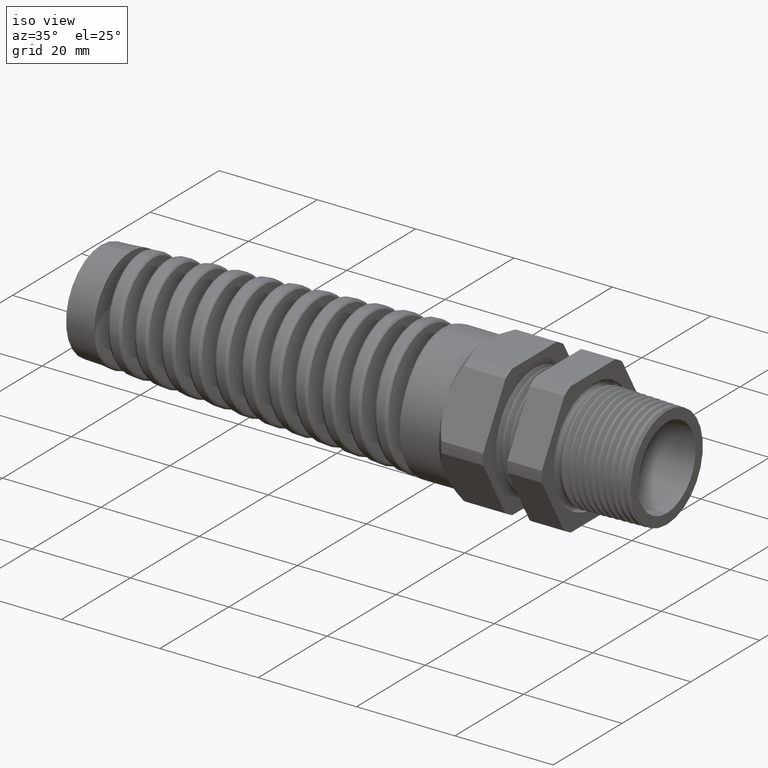
[diagram: clean part render]
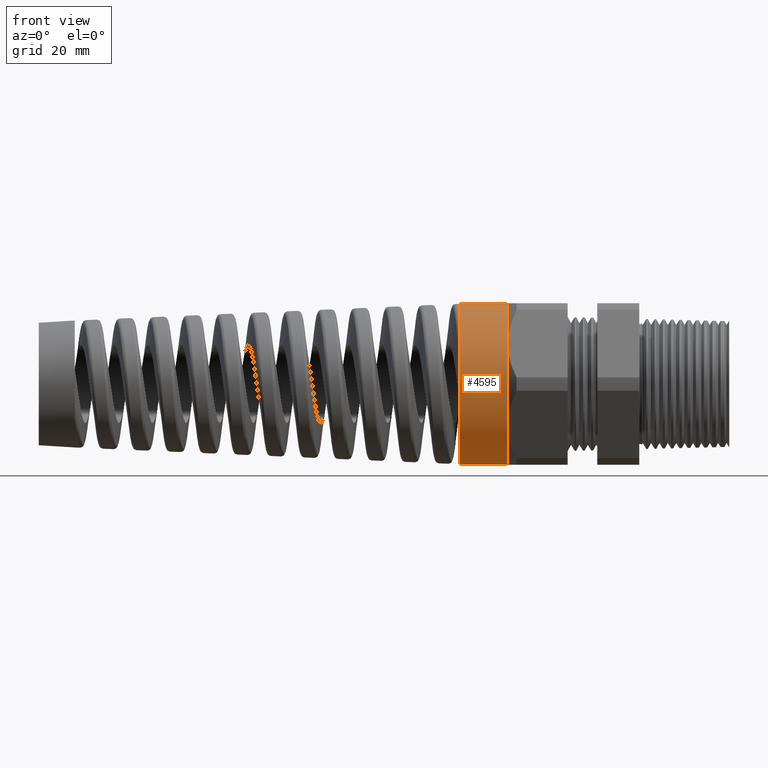
[diagram: tour spotlight — one face highlighted and labeled with its STEP entity id]
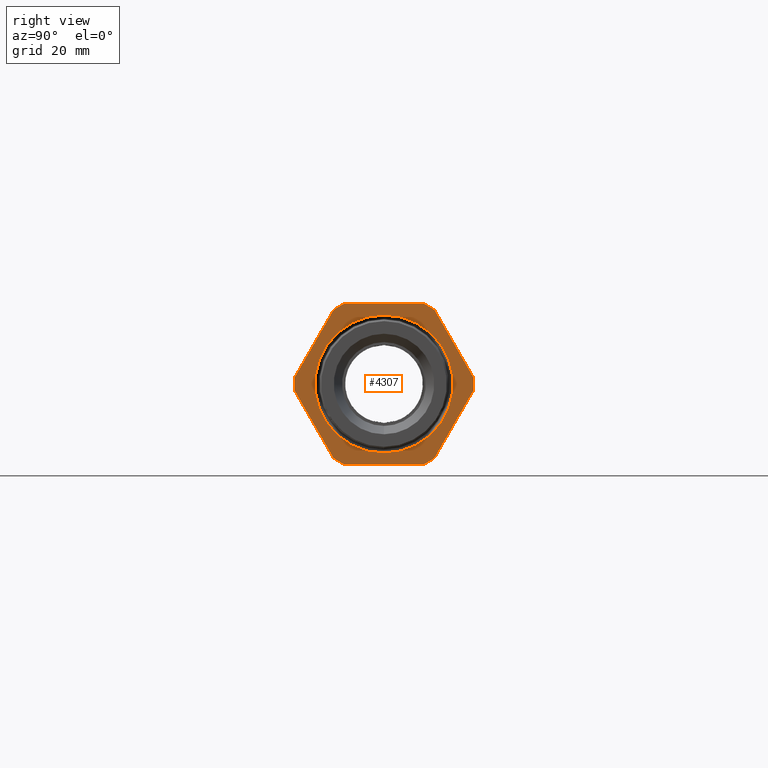
[diagram: tour spotlight — one face highlighted and labeled with its STEP entity id]
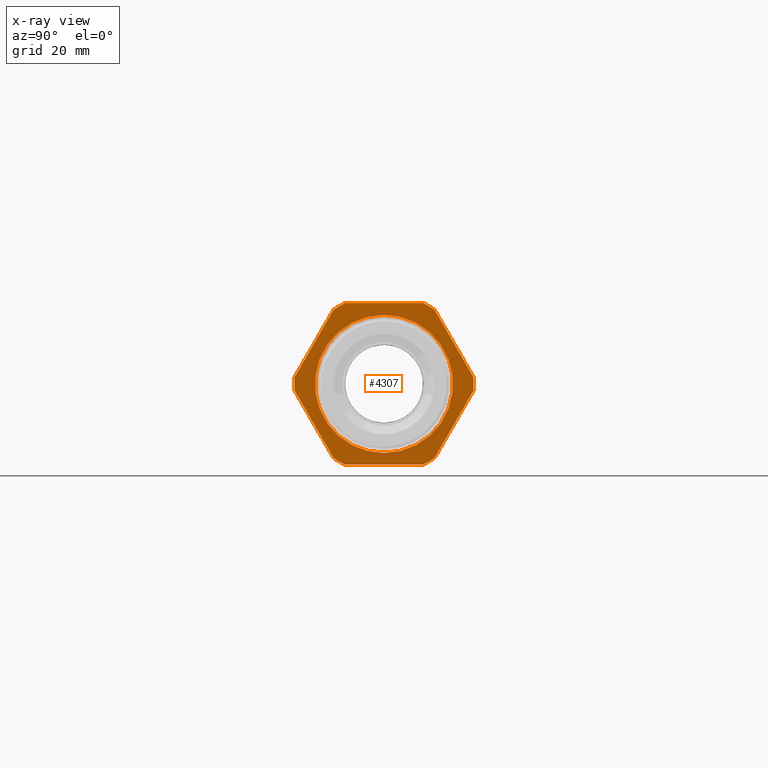
[diagram: x-ray of the same camera — body ghosted, this tour face saturated]
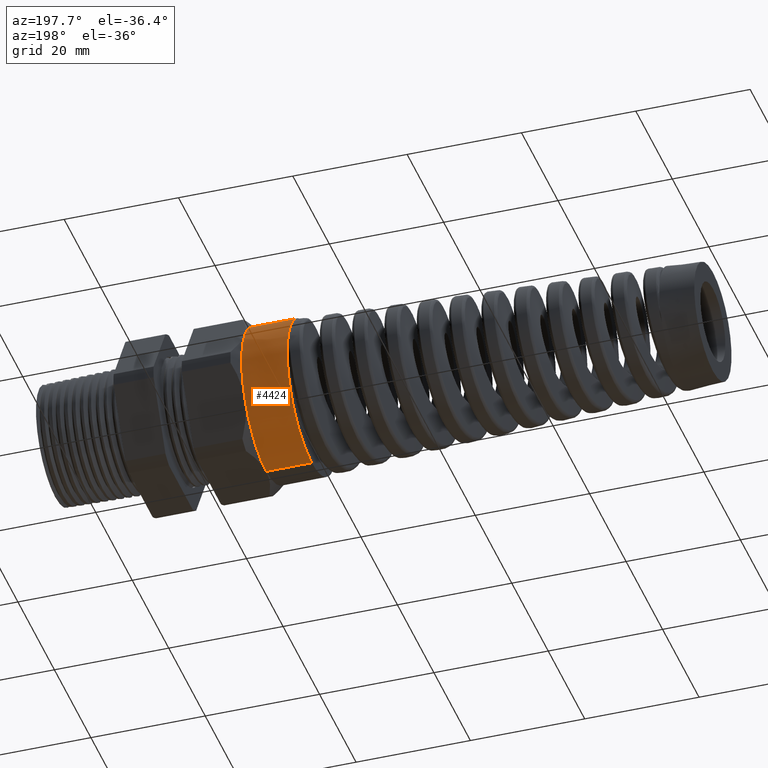
[diagram: tour spotlight — one face highlighted and labeled with its STEP entity id]
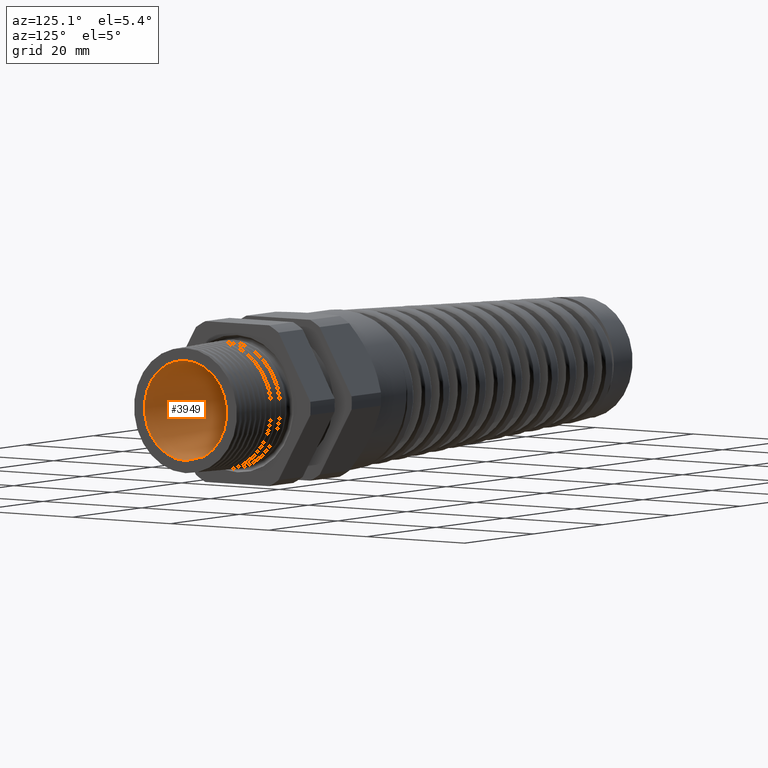
[diagram: tour spotlight — one face highlighted and labeled with its STEP entity id]
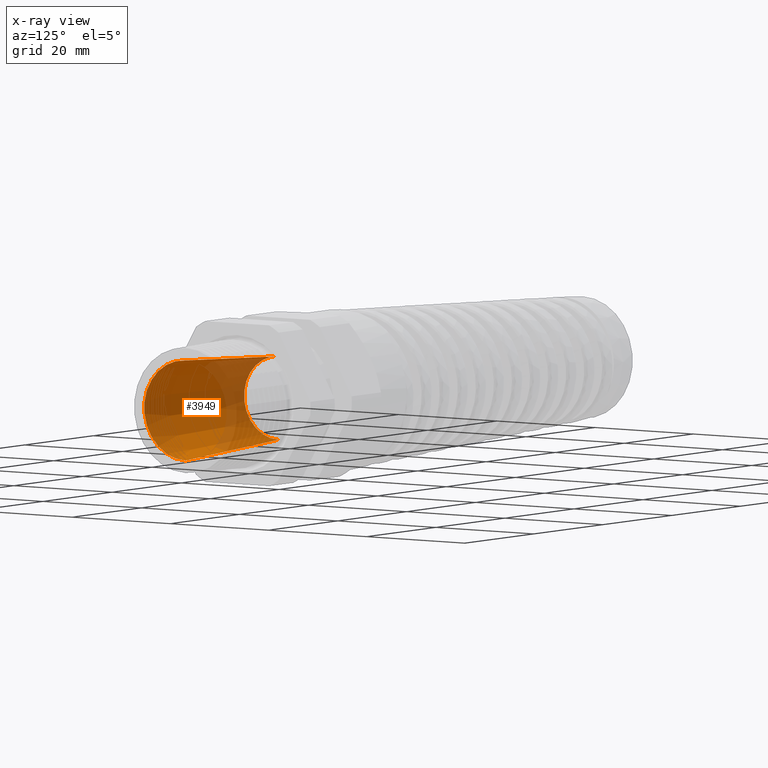
[diagram: x-ray of the same camera — body ghosted, this tour face saturated]
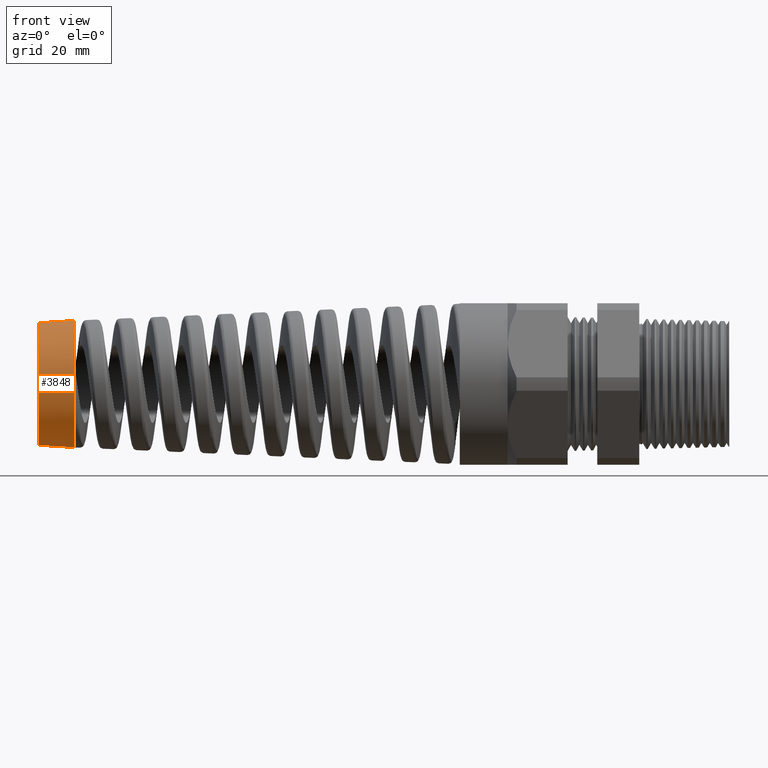
[diagram: tour spotlight — one face highlighted and labeled with its STEP entity id]
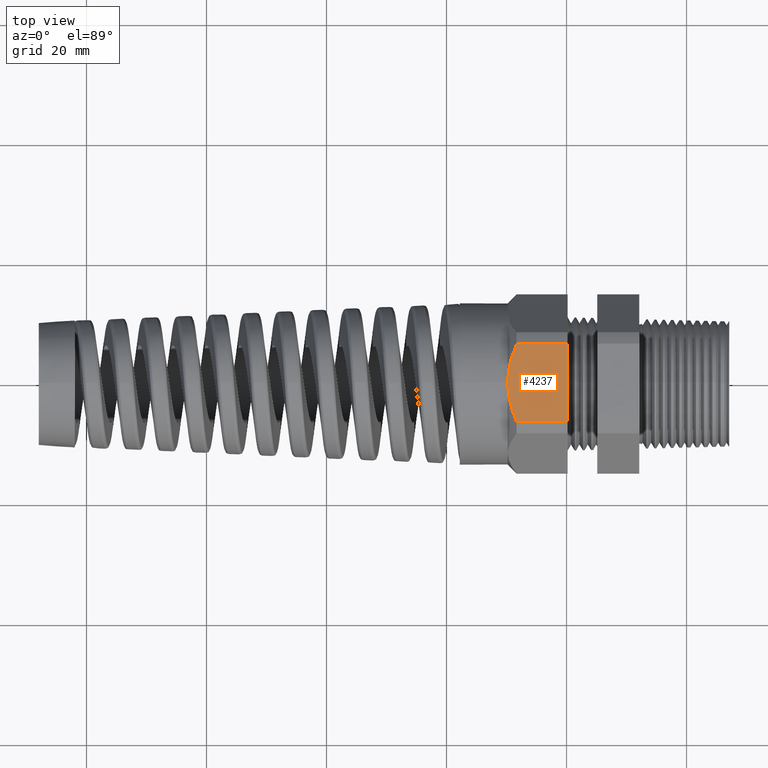
[diagram: tour spotlight — one face highlighted and labeled with its STEP entity id]
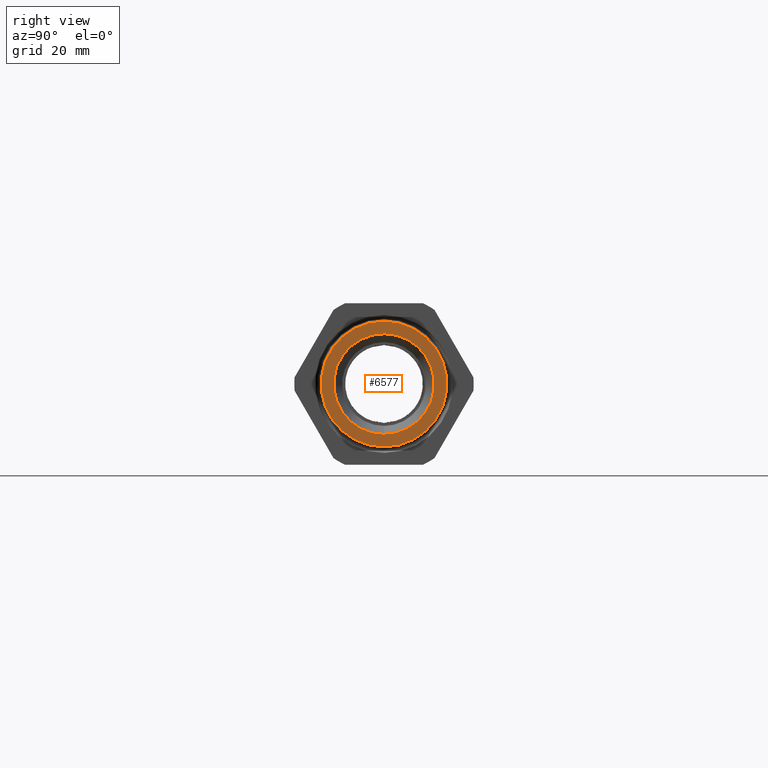
[diagram: tour spotlight — one face highlighted and labeled with its STEP entity id]
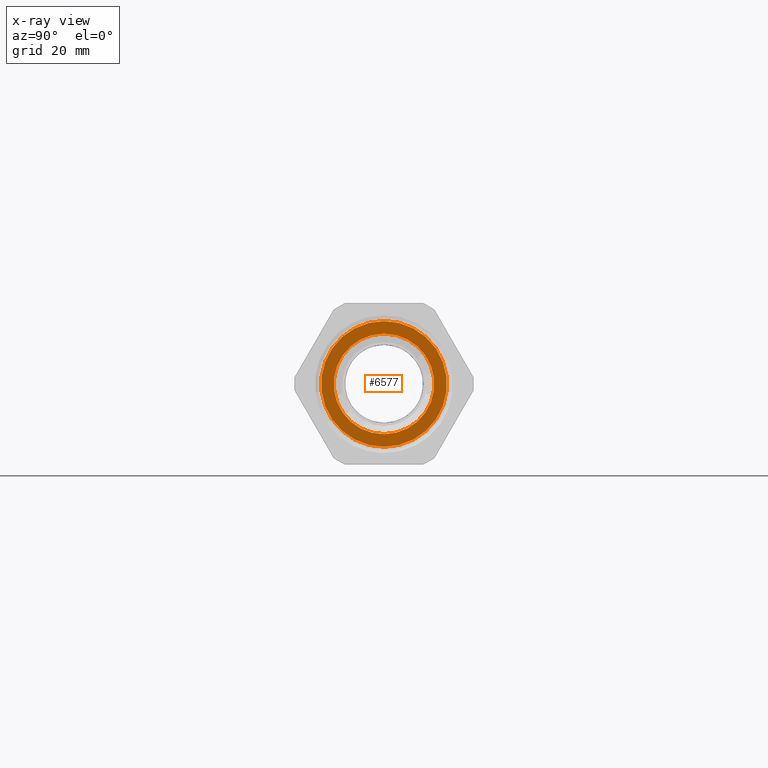
[diagram: x-ray of the same camera — body ghosted, this tour face saturated]
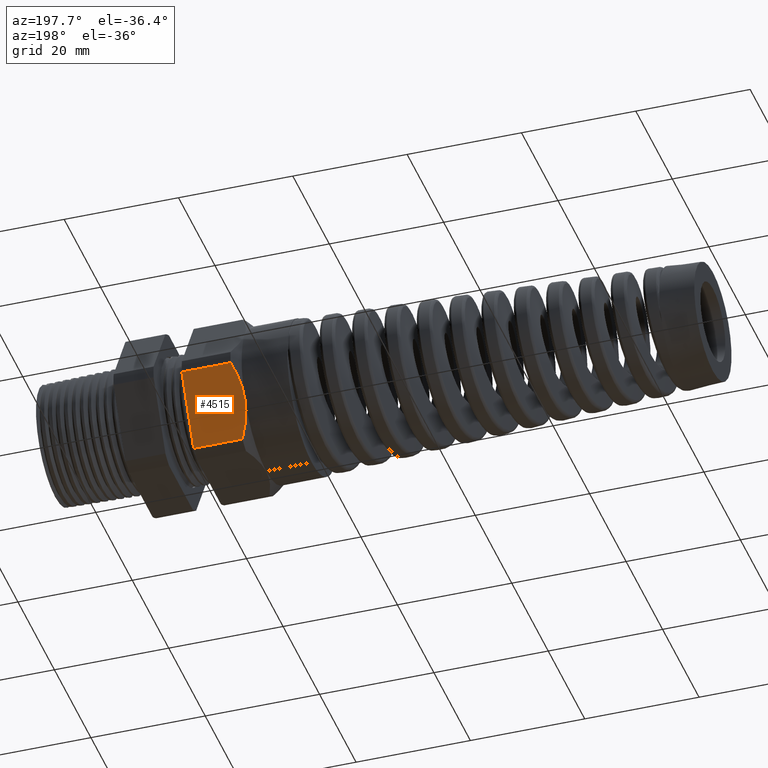
[diagram: tour spotlight — one face highlighted and labeled with its STEP entity id]
A machine part: a face-by-face anatomy tour. The part has 210 B-rep faces; the first image is the clean iso view, then the 8 largest visible faces are spotlighted one at a time (largest first), each with its STEP entity span.

Face 1 — front view, entity #4595. In plain terms, the highlighted cylindrical surface (partial cylindrical patch) has radius 13.462 mm, axis along (1, 0, 0).
Definition (entity closure, byte-faithful):
#4428 = VERTEX_POINT ( 'NONE', #18688 ) ;
#4429 = VERTEX_POINT ( 'NONE', #18687 ) ;
#4431 = EDGE_CURVE ( 'NONE', #4428, #4432, #18686, .T. ) ;
#4432 = VERTEX_POINT ( 'NONE', #18682 ) ;
#4444 = VERTEX_POINT ( 'NONE', #18738 ) ;
#4446 = EDGE_CURVE ( 'NONE', #4429, #4444, #18737, .T. ) ;
#4525 = VERTEX_POINT ( 'NONE', #18790 ) ;
#4595 = ADVANCED_FACE ( 'NONE', ( #18866 ), #19022, .T. ) ;
#4596 = EDGE_LOOP ( 'NONE', ( #4597, #4598, #4600, #4601, #4603, #4605 ) ) ;
#4597 = ORIENTED_EDGE ( 'NONE', *, *, #4431, .F. ) ;
#4598 = ORIENTED_EDGE ( 'NONE', *, *, #4599, .F. ) ;
#4599 = EDGE_CURVE ( 'NONE', #4429, #4428, #19003, .T. ) ;
#4600 = ORIENTED_EDGE ( 'NONE', *, *, #4446, .T. ) ;
#4601 = ORIENTED_EDGE ( 'NONE', *, *, #4602, .F. ) ;
#4602 = EDGE_CURVE ( 'NONE', #4525, #4444, #19098, .T. ) ;
#4603 = ORIENTED_EDGE ( 'NONE', *, *, #4604, .F. ) ;
#4604 = EDGE_CURVE ( 'NONE', #4608, #4525, #19093, .T. ) ;
#4605 = ORIENTED_EDGE ( 'NONE', *, *, #4613, .F. ) ;
#4608 = VERTEX_POINT ( 'NONE', #19183 ) ;
#4613 = EDGE_CURVE ( 'NONE', #4432, #4608, #19172, .T. ) ;
#18682 = CARTESIAN_POINT ( 'NONE',  ( -1.173779527559055200, 0.0000000000000000000, 0.5300000000000001400 ) ) ;
#18683 = DIRECTION ( 'NONE',  ( 1.000000000000000000, 0.0000000000000000000, 0.0000000000000000000 ) ) ;
#18684 = VECTOR ( 'NONE', #18683, 39.37007874015748100 ) ;
#18685 = CARTESIAN_POINT ( 'NONE',  ( 0.0000000000000000000, 6.490628035480972400E-017, 0.5300000000000000300 ) ) ;
#18686 = LINE ( 'NONE', #18685, #18684 ) ;
#18687 = CARTESIAN_POINT ( 'NONE',  ( -1.487985188310925600, 0.0000000000000000000, -0.5300000000000001400 ) ) ;
#18688 = CARTESIAN_POINT ( 'NONE',  ( -1.487985188310925600, 6.490628035480973600E-017, 0.5300000000000001400 ) ) ;
#18734 = DIRECTION ( 'NONE',  ( 1.000000000000000000, 0.0000000000000000000, 0.0000000000000000000 ) ) ;
#18735 = VECTOR ( 'NONE', #18734, 39.37007874015748100 ) ;
#18736 = CARTESIAN_POINT ( 'NONE',  ( 0.0000000000000000000, 0.0000000000000000000, -0.5300000000000000300 ) ) ;
#18737 = LINE ( 'NONE', #18736, #18735 ) ;
#18738 = CARTESIAN_POINT ( 'NONE',  ( -1.173779527559055200, 0.0000000000000000000, -0.5300000000000000300 ) ) ;
#18790 = CARTESIAN_POINT ( 'NONE',  ( -1.173779527559055200, -0.4589934640057526900, -0.2650000000000002400 ) ) ;
#18866 = FACE_OUTER_BOUND ( 'NONE', #4596, .T. ) ;
#19002 = AXIS2_PLACEMENT_3D ( 'NONE', #19023, #19100, #19099 ) ;
#19003 = CIRCLE ( 'NONE', #19002, 0.5300000000000001400 ) ;
#19004 = DIRECTION ( 'NONE',  ( 0.0000000000000000000, 0.0000000000000000000, -1.000000000000000000 ) ) ;
#19005 = DIRECTION ( 'NONE',  ( 1.000000000000000000, 0.0000000000000000000, 0.0000000000000000000 ) ) ;
#19006 = CARTESIAN_POINT ( 'NONE',  ( 0.0000000000000000000, 0.0000000000000000000, 0.0000000000000000000 ) ) ;
#19007 = AXIS2_PLACEMENT_3D ( 'NONE', #19006, #19005, #19004 ) ;
#19022 = CYLINDRICAL_SURFACE ( 'NONE', #19007, 0.5300000000000000300 ) ;
#19023 = CARTESIAN_POINT ( 'NONE',  ( -1.487985188310925600, 0.0000000000000000000, 0.0000000000000000000 ) ) ;
#19093 = CIRCLE ( 'NONE', #19188, 0.5300000000000000300 ) ;
#19094 = DIRECTION ( 'NONE',  ( 0.0000000000000000000, 0.0000000000000000000, -1.000000000000000000 ) ) ;
#19095 = DIRECTION ( 'NONE',  ( 1.000000000000000000, 0.0000000000000000000, 0.0000000000000000000 ) ) ;
#19096 = CARTESIAN_POINT ( 'NONE',  ( -1.173779527559055200, 0.0000000000000000000, 0.0000000000000000000 ) ) ;
#19097 = AXIS2_PLACEMENT_3D ( 'NONE', #19096, #19095, #19094 ) ;
#19098 = CIRCLE ( 'NONE', #19097, 0.5300000000000000300 ) ;
#19099 = DIRECTION ( 'NONE',  ( 0.0000000000000000000, 0.0000000000000000000, 1.000000000000000000 ) ) ;
#19100 = DIRECTION ( 'NONE',  ( -1.000000000000000000, 0.0000000000000000000, 0.0000000000000000000 ) ) ;
#19161 = DIRECTION ( 'NONE',  ( 0.0000000000000000000, 0.0000000000000000000, -1.000000000000000000 ) ) ;
#19162 = DIRECTION ( 'NONE',  ( 1.000000000000000000, 0.0000000000000000000, 0.0000000000000000000 ) ) ;
#19163 = CARTESIAN_POINT ( 'NONE',  ( -1.173779527559055200, 0.0000000000000000000, 0.0000000000000000000 ) ) ;
#19164 = AXIS2_PLACEMENT_3D ( 'NONE', #19163, #19162, #19161 ) ;
#19172 = CIRCLE ( 'NONE', #19164, 0.5300000000000000300 ) ;
#19183 = CARTESIAN_POINT ( 'NONE',  ( -1.173779527559055200, -0.4589934640057526900, 0.2650000000000000700 ) ) ;
#19185 = DIRECTION ( 'NONE',  ( 0.0000000000000000000, 0.0000000000000000000, -1.000000000000000000 ) ) ;
#19186 = DIRECTION ( 'NONE',  ( 1.000000000000000000, 0.0000000000000000000, 0.0000000000000000000 ) ) ;
#19187 = CARTESIAN_POINT ( 'NONE',  ( -1.173779527559055200, 0.0000000000000000000, 0.0000000000000000000 ) ) ;
#19188 = AXIS2_PLACEMENT_3D ( 'NONE', #19187, #19186, #19185 ) ;

Face 2 — right view, entity #4307. An x-ray twin of the same camera follows (body ghosted, this face saturated) — the face is partly hidden behind the body. In plain terms, the highlighted planar face has unit normal (1, 0, 0).
Definition (entity closure, byte-faithful):
#936 = DIRECTION ( 'NONE',  ( 0.0000000000000000000, 0.0000000000000000000, -1.000000000000000000 ) ) ;
#2095 = DIRECTION ( 'NONE',  ( -1.000000000000000000, 0.0000000000000000000, 0.0000000000000000000 ) ) ;
#2096 = CARTESIAN_POINT ( 'NONE',  ( -0.3100000000000000000, 0.0000000000000000000, 0.0000000000000000000 ) ) ;
#2097 = AXIS2_PLACEMENT_3D ( 'NONE', #2096, #2095, #936 ) ;
#2098 = CIRCLE ( 'NONE', #2097, 0.4526738836800272600 ) ;
#2275 = CARTESIAN_POINT ( 'NONE',  ( -0.3100000000000000000, 0.0000000000000000000, -0.4526738836800271400 ) ) ;
#2514 = CARTESIAN_POINT ( 'NONE',  ( -0.3100000000000000000, 5.543656227063465800E-017, 0.4526738836800271400 ) ) ;
#3117 = VERTEX_POINT ( 'NONE', #2514 ) ;
#3308 = EDGE_CURVE ( 'NONE', #3309, #3117, #2098, .T. ) ;
#3309 = VERTEX_POINT ( 'NONE', #2275 ) ;
#3813 = ORIENTED_EDGE ( 'NONE', *, *, #4501, .T. ) ;
#4293 = ORIENTED_EDGE ( 'NONE', *, *, #4294, .T. ) ;
#4294 = EDGE_CURVE ( 'NONE', #4295, #4296, #18294, .T. ) ;
#4295 = VERTEX_POINT ( 'NONE', #18290 ) ;
#4296 = VERTEX_POINT ( 'NONE', #18289 ) ;
#4297 = ORIENTED_EDGE ( 'NONE', *, *, #4298, .T. ) ;
#4298 = EDGE_CURVE ( 'NONE', #4296, #4318, #18288, .T. ) ;
#4307 = ADVANCED_FACE ( 'NONE', ( #18552, #18704 ), #18702, .T. ) ;
#4308 = EDGE_LOOP ( 'NONE', ( #4293, #4297, #4319, #4322, #4333, #4336, #4309, #4312, #4315, #3813, #4502, #4490 ) ) ;
#4309 = ORIENTED_EDGE ( 'NONE', *, *, #4310, .T. ) ;
#4310 = EDGE_CURVE ( 'NONE', #4338, #4311, #18703, .T. ) ;
#4311 = VERTEX_POINT ( 'NONE', #18607 ) ;
#4312 = ORIENTED_EDGE ( 'NONE', *, *, #4313, .T. ) ;
#4313 = EDGE_CURVE ( 'NONE', #4311, #4314, #18606, .T. ) ;
#4314 = VERTEX_POINT ( 'NONE', #18601 ) ;
#4315 = ORIENTED_EDGE ( 'NONE', *, *, #4316, .T. ) ;
#4316 = EDGE_CURVE ( 'NONE', #4314, #4317, #18600, .T. ) ;
#4317 = VERTEX_POINT ( 'NONE', #18596 ) ;
#4318 = VERTEX_POINT ( 'NONE', #18595 ) ;
#4319 = ORIENTED_EDGE ( 'NONE', *, *, #4320, .T. ) ;
#4320 = EDGE_CURVE ( 'NONE', #4318, #4321, #18594, .T. ) ;
#4321 = VERTEX_POINT ( 'NONE', #18590 ) ;
#4322 = ORIENTED_EDGE ( 'NONE', *, *, #4323, .T. ) ;
#4323 = EDGE_CURVE ( 'NONE', #4321, #4332, #18589, .T. ) ;
#4332 = VERTEX_POINT ( 'NONE', #18475 ) ;
#4333 = ORIENTED_EDGE ( 'NONE', *, *, #4334, .T. ) ;
#4334 = EDGE_CURVE ( 'NONE', #4332, #4335, #18474, .T. ) ;
#4335 = VERTEX_POINT ( 'NONE', #18470 ) ;
#4336 = ORIENTED_EDGE ( 'NONE', *, *, #4337, .T. ) ;
#4337 = EDGE_CURVE ( 'NONE', #4335, #4338, #18469, .T. ) ;
#4338 = VERTEX_POINT ( 'NONE', #18464 ) ;
#4456 = EDGE_LOOP ( 'NONE', ( #4521, #4522 ) ) ;
#4490 = ORIENTED_EDGE ( 'NONE', *, *, #4491, .T. ) ;
#4491 = EDGE_CURVE ( 'NONE', #4520, #4295, #18729, .T. ) ;
#4492 = EDGE_CURVE ( 'NONE', #3117, #3309, #18724, .T. ) ;
#4501 = EDGE_CURVE ( 'NONE', #4317, #4519, #18819, .T. ) ;
#4502 = ORIENTED_EDGE ( 'NONE', *, *, #4512, .T. ) ;
#4512 = EDGE_CURVE ( 'NONE', #4519, #4520, #18804, .T. ) ;
#4519 = VERTEX_POINT ( 'NONE', #18793 ) ;
#4520 = VERTEX_POINT ( 'NONE', #18792 ) ;
#4521 = ORIENTED_EDGE ( 'NONE', *, *, #3308, .T. ) ;
#4522 = ORIENTED_EDGE ( 'NONE', *, *, #4492, .T. ) ;
#18284 = DIRECTION ( 'NONE',  ( 0.0000000000000000000, 0.0000000000000000000, -1.000000000000000000 ) ) ;
#18285 = DIRECTION ( 'NONE',  ( 1.000000000000000000, 0.0000000000000000000, 0.0000000000000000000 ) ) ;
#18286 = CARTESIAN_POINT ( 'NONE',  ( -0.3100000000000000000, 0.0000000000000000000, 0.0000000000000000000 ) ) ;
#18287 = AXIS2_PLACEMENT_3D ( 'NONE', #18286, #18285, #18284 ) ;
#18288 = CIRCLE ( 'NONE', #18287, 0.5883000000000000500 ) ;
#18289 = CARTESIAN_POINT ( 'NONE',  ( -0.3100000000000000000, 0.5866618723924789100, -0.04387183015273760800 ) ) ;
#18290 = CARTESIAN_POINT ( 'NONE',  ( -0.3100000000000000000, 0.3313250556190265900, -0.4861281698472626500 ) ) ;
#18291 = DIRECTION ( 'NONE',  ( 0.0000000000000000000, 0.4999999999999997200, 0.8660254037844388200 ) ) ;
#18292 = VECTOR ( 'NONE', #18291, 39.37007874015748900 ) ;
#18293 = CARTESIAN_POINT ( 'NONE',  ( -0.3100000000000000000, 0.7239934640057524900, 0.1939934640057522900 ) ) ;
#18294 = LINE ( 'NONE', #18293, #18292 ) ;
#18464 = CARTESIAN_POINT ( 'NONE',  ( -0.3100000000000000000, -0.3313250556190262000, 0.4861281698472627600 ) ) ;
#18465 = DIRECTION ( 'NONE',  ( 0.0000000000000000000, 0.0000000000000000000, -1.000000000000000000 ) ) ;
#18466 = DIRECTION ( 'NONE',  ( 1.000000000000000000, 0.0000000000000000000, 0.0000000000000000000 ) ) ;
#18467 = CARTESIAN_POINT ( 'NONE',  ( -0.3100000000000000000, 0.0000000000000000000, 0.0000000000000000000 ) ) ;
#18468 = AXIS2_PLACEMENT_3D ( 'NONE', #18467, #18466, #18465 ) ;
#18469 = CIRCLE ( 'NONE', #18468, 0.5882999999999999300 ) ;
#18470 = CARTESIAN_POINT ( 'NONE',  ( -0.3100000000000000000, -0.2553368167734533200, 0.5299999999999999200 ) ) ;
#18471 = DIRECTION ( 'NONE',  ( 0.0000000000000000000, -1.000000000000000000, 0.0000000000000000000 ) ) ;
#18472 = VECTOR ( 'NONE', #18471, 39.37007874015748100 ) ;
#18473 = CARTESIAN_POINT ( 'NONE',  ( -0.3100000000000000000, 1.060000000000000100, 0.5300000000000001400 ) ) ;
#18474 = LINE ( 'NONE', #18473, #18472 ) ;
#18475 = CARTESIAN_POINT ( 'NONE',  ( -0.3100000000000000000, 0.2553368167734530500, 0.5300000000000001400 ) ) ;
#18552 = FACE_OUTER_BOUND ( 'NONE', #4308, .T. ) ;
#18585 = DIRECTION ( 'NONE',  ( 0.0000000000000000000, 0.0000000000000000000, -1.000000000000000000 ) ) ;
#18586 = DIRECTION ( 'NONE',  ( 1.000000000000000000, 0.0000000000000000000, 0.0000000000000000000 ) ) ;
#18587 = CARTESIAN_POINT ( 'NONE',  ( -0.3100000000000000000, 0.0000000000000000000, 0.0000000000000000000 ) ) ;
#18588 = AXIS2_PLACEMENT_3D ( 'NONE', #18587, #18586, #18585 ) ;
#18589 = CIRCLE ( 'NONE', #18588, 0.5882999999999999300 ) ;
#18590 = CARTESIAN_POINT ( 'NONE',  ( -0.3100000000000000000, 0.3313250556190264200, 0.4861281698472625900 ) ) ;
#18591 = DIRECTION ( 'NONE',  ( 0.0000000000000000000, -0.5000000000000001100, 0.8660254037844386000 ) ) ;
#18592 = VECTOR ( 'NONE', #18591, 39.37007874015748100 ) ;
#18593 = CARTESIAN_POINT ( 'NONE',  ( -0.3100000000000000000, 0.7239934640057528200, -0.1939934640057523200 ) ) ;
#18594 = LINE ( 'NONE', #18593, #18592 ) ;
#18595 = CARTESIAN_POINT ( 'NONE',  ( -0.3100000000000000000, 0.5866618723924790200, 0.04387183015273769800 ) ) ;
#18596 = CARTESIAN_POINT ( 'NONE',  ( -0.3100000000000000000, -0.3313250556190258700, -0.4861281698472630400 ) ) ;
#18597 = DIRECTION ( 'NONE',  ( 0.0000000000000000000, 0.5000000000000002200, -0.8660254037844386000 ) ) ;
#18598 = VECTOR ( 'NONE', #18597, 39.37007874015747400 ) ;
#18599 = CARTESIAN_POINT ( 'NONE',  ( -0.3100000000000000000, -0.1939934640057522900, -0.7239934640057527100 ) ) ;
#18600 = LINE ( 'NONE', #18599, #18598 ) ;
#18601 = CARTESIAN_POINT ( 'NONE',  ( -0.3100000000000000000, -0.5866618723924791300, -0.04387183015273716400 ) ) ;
#18602 = DIRECTION ( 'NONE',  ( 0.0000000000000000000, 0.0000000000000000000, -1.000000000000000000 ) ) ;
#18603 = DIRECTION ( 'NONE',  ( 1.000000000000000000, 0.0000000000000000000, 0.0000000000000000000 ) ) ;
#18604 = CARTESIAN_POINT ( 'NONE',  ( -0.3100000000000000000, 0.0000000000000000000, 0.0000000000000000000 ) ) ;
#18605 = AXIS2_PLACEMENT_3D ( 'NONE', #18604, #18603, #18602 ) ;
#18606 = CIRCLE ( 'NONE', #18605, 0.5883000000000000500 ) ;
#18607 = CARTESIAN_POINT ( 'NONE',  ( -0.3100000000000000000, -0.5866618723924791300, 0.04387183015273703200 ) ) ;
#18608 = DIRECTION ( 'NONE',  ( 0.0000000000000000000, -0.4999999999999998300, -0.8660254037844386000 ) ) ;
#18609 = VECTOR ( 'NONE', #18608, 39.37007874015748900 ) ;
#18610 = CARTESIAN_POINT ( 'NONE',  ( -0.3100000000000000000, -0.1939934640057528500, 0.7239934640057523700 ) ) ;
#18698 = DIRECTION ( 'NONE',  ( 0.0000000000000000000, 0.0000000000000000000, -1.000000000000000000 ) ) ;
#18699 = DIRECTION ( 'NONE',  ( 1.000000000000000000, 0.0000000000000000000, 0.0000000000000000000 ) ) ;
#18700 = CARTESIAN_POINT ( 'NONE',  ( -0.3100000000000000000, 1.060000000000000100, 0.0000000000000000000 ) ) ;
#18701 = AXIS2_PLACEMENT_3D ( 'NONE', #18700, #18699, #18698 ) ;
#18702 = PLANE ( 'NONE',  #18701 ) ;
#18703 = LINE ( 'NONE', #18610, #18609 ) ;
#18704 = FACE_BOUND ( 'NONE', #4456, .T. ) ;
#18720 = DIRECTION ( 'NONE',  ( 0.0000000000000000000, 0.0000000000000000000, -1.000000000000000000 ) ) ;
#18721 = DIRECTION ( 'NONE',  ( -1.000000000000000000, 0.0000000000000000000, 0.0000000000000000000 ) ) ;
#18722 = CARTESIAN_POINT ( 'NONE',  ( -0.3100000000000000000, 0.0000000000000000000, 0.0000000000000000000 ) ) ;
#18723 = AXIS2_PLACEMENT_3D ( 'NONE', #18722, #18721, #18720 ) ;
#18724 = CIRCLE ( 'NONE', #18723, 0.4526738836800272600 ) ;
#18725 = DIRECTION ( 'NONE',  ( 0.0000000000000000000, 0.0000000000000000000, -1.000000000000000000 ) ) ;
#18726 = DIRECTION ( 'NONE',  ( 1.000000000000000000, 0.0000000000000000000, 0.0000000000000000000 ) ) ;
#18727 = CARTESIAN_POINT ( 'NONE',  ( -0.3100000000000000000, 0.0000000000000000000, 0.0000000000000000000 ) ) ;
#18728 = AXIS2_PLACEMENT_3D ( 'NONE', #18727, #18726, #18725 ) ;
#18729 = CIRCLE ( 'NONE', #18728, 0.5883000000000000500 ) ;
#18792 = CARTESIAN_POINT ( 'NONE',  ( -0.3100000000000000000, 0.2553368167734530500, -0.5300000000000001400 ) ) ;
#18793 = CARTESIAN_POINT ( 'NONE',  ( -0.3100000000000000000, -0.2553368167734529900, -0.5300000000000001400 ) ) ;
#18801 = DIRECTION ( 'NONE',  ( 0.0000000000000000000, 1.000000000000000000, 0.0000000000000000000 ) ) ;
#18802 = VECTOR ( 'NONE', #18801, 39.37007874015748100 ) ;
#18803 = CARTESIAN_POINT ( 'NONE',  ( -0.3100000000000000000, 1.060000000000000100, -0.5300000000000001400 ) ) ;
#18804 = LINE ( 'NONE', #18803, #18802 ) ;
#18816 = DIRECTION ( 'NONE',  ( 0.0000000000000000000, 0.0000000000000000000, -1.000000000000000000 ) ) ;
#18817 = DIRECTION ( 'NONE',  ( 1.000000000000000000, 0.0000000000000000000, 0.0000000000000000000 ) ) ;
#18818 = AXIS2_PLACEMENT_3D ( 'NONE', #18856, #18817, #18816 ) ;
#18819 = CIRCLE ( 'NONE', #18818, 0.5883000000000000500 ) ;
#18856 = CARTESIAN_POINT ( 'NONE',  ( -0.3100000000000000000, 0.0000000000000000000, 0.0000000000000000000 ) ) ;

Face 3 — auxiliary view, entity #4424. In plain terms, the highlighted cylindrical surface (partial cylindrical patch) has radius 13.462 mm, axis along (1, 0, 0).
Definition (entity closure, byte-faithful):
#4424 = ADVANCED_FACE ( 'NONE', ( #18642 ), #18641, .T. ) ;
#4425 = EDGE_LOOP ( 'NONE', ( #4426, #4430, #4437, #4439, #4442, #4445 ) ) ;
#4426 = ORIENTED_EDGE ( 'NONE', *, *, #4427, .F. ) ;
#4427 = EDGE_CURVE ( 'NONE', #4428, #4429, #18692, .T. ) ;
#4428 = VERTEX_POINT ( 'NONE', #18688 ) ;
#4429 = VERTEX_POINT ( 'NONE', #18687 ) ;
#4430 = ORIENTED_EDGE ( 'NONE', *, *, #4431, .T. ) ;
#4431 = EDGE_CURVE ( 'NONE', #4428, #4432, #18686, .T. ) ;
#4432 = VERTEX_POINT ( 'NONE', #18682 ) ;
#4433 = VERTEX_POINT ( 'NONE', #18681 ) ;
#4437 = ORIENTED_EDGE ( 'NONE', *, *, #4438, .F. ) ;
#4438 = EDGE_CURVE ( 'NONE', #4433, #4432, #18676, .T. ) ;
#4439 = ORIENTED_EDGE ( 'NONE', *, *, #4440, .F. ) ;
#4440 = EDGE_CURVE ( 'NONE', #4441, #4433, #18787, .T. ) ;
#4441 = VERTEX_POINT ( 'NONE', #18847 ) ;
#4442 = ORIENTED_EDGE ( 'NONE', *, *, #4443, .F. ) ;
#4443 = EDGE_CURVE ( 'NONE', #4444, #4441, #18846, .T. ) ;
#4444 = VERTEX_POINT ( 'NONE', #18738 ) ;
#4445 = ORIENTED_EDGE ( 'NONE', *, *, #4446, .F. ) ;
#4446 = EDGE_CURVE ( 'NONE', #4429, #4444, #18737, .T. ) ;
#18283 = AXIS2_PLACEMENT_3D ( 'NONE', #18675, #18789, #18788 ) ;
#18641 = CYLINDRICAL_SURFACE ( 'NONE', #18697, 0.5300000000000000300 ) ;
#18642 = FACE_OUTER_BOUND ( 'NONE', #4425, .T. ) ;
#18675 = CARTESIAN_POINT ( 'NONE',  ( -1.173779527559055200, 0.0000000000000000000, 0.0000000000000000000 ) ) ;
#18676 = CIRCLE ( 'NONE', #18283, 0.5300000000000000300 ) ;
#18681 = CARTESIAN_POINT ( 'NONE',  ( -1.173779527559055200, 0.4589934640057527500, 0.2650000000000002400 ) ) ;
#18682 = CARTESIAN_POINT ( 'NONE',  ( -1.173779527559055200, 0.0000000000000000000, 0.5300000000000001400 ) ) ;
#18683 = DIRECTION ( 'NONE',  ( 1.000000000000000000, 0.0000000000000000000, 0.0000000000000000000 ) ) ;
#18684 = VECTOR ( 'NONE', #18683, 39.37007874015748100 ) ;
#18685 = CARTESIAN_POINT ( 'NONE',  ( 0.0000000000000000000, 6.490628035480972400E-017, 0.5300000000000000300 ) ) ;
#18686 = LINE ( 'NONE', #18685, #18684 ) ;
#18687 = CARTESIAN_POINT ( 'NONE',  ( -1.487985188310925600, 0.0000000000000000000, -0.5300000000000001400 ) ) ;
#18688 = CARTESIAN_POINT ( 'NONE',  ( -1.487985188310925600, 6.490628035480973600E-017, 0.5300000000000001400 ) ) ;
#18689 = DIRECTION ( 'NONE',  ( 0.0000000000000000000, 0.0000000000000000000, 1.000000000000000000 ) ) ;
#18690 = DIRECTION ( 'NONE',  ( -1.000000000000000000, 0.0000000000000000000, 0.0000000000000000000 ) ) ;
#18691 = AXIS2_PLACEMENT_3D ( 'NONE', #18696, #18690, #18689 ) ;
#18692 = CIRCLE ( 'NONE', #18691, 0.5300000000000001400 ) ;
#18693 = DIRECTION ( 'NONE',  ( 0.0000000000000000000, 0.0000000000000000000, -1.000000000000000000 ) ) ;
#18694 = DIRECTION ( 'NONE',  ( 1.000000000000000000, 0.0000000000000000000, 0.0000000000000000000 ) ) ;
#18695 = CARTESIAN_POINT ( 'NONE',  ( 0.0000000000000000000, 0.0000000000000000000, 0.0000000000000000000 ) ) ;
#18696 = CARTESIAN_POINT ( 'NONE',  ( -1.487985188310925600, 0.0000000000000000000, 0.0000000000000000000 ) ) ;
#18697 = AXIS2_PLACEMENT_3D ( 'NONE', #18695, #18694, #18693 ) ;
#18734 = DIRECTION ( 'NONE',  ( 1.000000000000000000, 0.0000000000000000000, 0.0000000000000000000 ) ) ;
#18735 = VECTOR ( 'NONE', #18734, 39.37007874015748100 ) ;
#18736 = CARTESIAN_POINT ( 'NONE',  ( 0.0000000000000000000, 0.0000000000000000000, -0.5300000000000000300 ) ) ;
#18737 = LINE ( 'NONE', #18736, #18735 ) ;
#18738 = CARTESIAN_POINT ( 'NONE',  ( -1.173779527559055200, 0.0000000000000000000, -0.5300000000000000300 ) ) ;
#18739 = DIRECTION ( 'NONE',  ( 0.0000000000000000000, 0.0000000000000000000, -1.000000000000000000 ) ) ;
#18740 = DIRECTION ( 'NONE',  ( 1.000000000000000000, 0.0000000000000000000, 0.0000000000000000000 ) ) ;
#18741 = AXIS2_PLACEMENT_3D ( 'NONE', #18845, #18740, #18739 ) ;
#18787 = CIRCLE ( 'NONE', #18851, 0.5300000000000000300 ) ;
#18788 = DIRECTION ( 'NONE',  ( 0.0000000000000000000, 0.0000000000000000000, -1.000000000000000000 ) ) ;
#18789 = DIRECTION ( 'NONE',  ( 1.000000000000000000, 0.0000000000000000000, 0.0000000000000000000 ) ) ;
#18845 = CARTESIAN_POINT ( 'NONE',  ( -1.173779527559055200, 0.0000000000000000000, 0.0000000000000000000 ) ) ;
#18846 = CIRCLE ( 'NONE', #18741, 0.5300000000000000300 ) ;
#18847 = CARTESIAN_POINT ( 'NONE',  ( -1.173779527559055200, 0.4589934640057530300, -0.2650000000000001200 ) ) ;
#18848 = DIRECTION ( 'NONE',  ( 0.0000000000000000000, 0.0000000000000000000, -1.000000000000000000 ) ) ;
#18849 = DIRECTION ( 'NONE',  ( 1.000000000000000000, 0.0000000000000000000, 0.0000000000000000000 ) ) ;
#18850 = CARTESIAN_POINT ( 'NONE',  ( -1.173779527559055200, 0.0000000000000000000, 0.0000000000000000000 ) ) ;
#18851 = AXIS2_PLACEMENT_3D ( 'NONE', #18850, #18849, #18848 ) ;

Face 4 — auxiliary view, entity #3949. An x-ray twin of the same camera follows (body ghosted, this face saturated) — the face is partly hidden behind the body. In plain terms, the highlighted conical surface has half-angle 2.97 deg.
Definition (entity closure, byte-faithful):
#3949 = ADVANCED_FACE ( 'NONE', ( #17637 ), #17567, .F. ) ;
#3950 = EDGE_LOOP ( 'NONE', ( #3951, #3955, #3976, #4362 ) ) ;
#3951 = ORIENTED_EDGE ( 'NONE', *, *, #3952, .F. ) ;
#3952 = EDGE_CURVE ( 'NONE', #3953, #3954, #17563, .T. ) ;
#3953 = VERTEX_POINT ( 'NONE', #17559 ) ;
#3954 = VERTEX_POINT ( 'NONE', #17558 ) ;
#3955 = ORIENTED_EDGE ( 'NONE', *, *, #3956, .T. ) ;
#3956 = EDGE_CURVE ( 'NONE', #3953, #3975, #17557, .T. ) ;
#3975 = VERTEX_POINT ( 'NONE', #17947 ) ;
#3976 = ORIENTED_EDGE ( 'NONE', *, *, #3977, .T. ) ;
#3977 = EDGE_CURVE ( 'NONE', #3975, #4361, #17946, .T. ) ;
#4361 = VERTEX_POINT ( 'NONE', #18583 ) ;
#4362 = ORIENTED_EDGE ( 'NONE', *, *, #4363, .F. ) ;
#4363 = EDGE_CURVE ( 'NONE', #3954, #4361, #18582, .T. ) ;
#17554 = DIRECTION ( 'NONE',  ( 0.9986567915187993800, 6.345292932195006300E-018, 0.05181324882090775800 ) ) ;
#17555 = VECTOR ( 'NONE', #17554, 39.37007874015748100 ) ;
#17556 = CARTESIAN_POINT ( 'NONE',  ( -0.7800787401574805800, 3.367778697655221900E-017, 0.2750000000000000200 ) ) ;
#17557 = LINE ( 'NONE', #17556, #17555 ) ;
#17558 = CARTESIAN_POINT ( 'NONE',  ( -0.7800787401574805800, 0.0000000000000000000, -0.2750000000000000200 ) ) ;
#17559 = CARTESIAN_POINT ( 'NONE',  ( -0.7800787401574805800, 3.367778697655221900E-017, 0.2750000000000000200 ) ) ;
#17560 = DIRECTION ( 'NONE',  ( 0.0000000000000000000, 0.0000000000000000000, -1.000000000000000000 ) ) ;
#17561 = DIRECTION ( 'NONE',  ( 1.000000000000000000, 0.0000000000000000000, 0.0000000000000000000 ) ) ;
#17562 = AXIS2_PLACEMENT_3D ( 'NONE', #17636, #17561, #17560 ) ;
#17563 = CIRCLE ( 'NONE', #17562, 0.2750000000000000200 ) ;
#17564 = DIRECTION ( 'NONE',  ( 0.0000000000000000000, 0.0000000000000000000, -1.000000000000000000 ) ) ;
#17565 = DIRECTION ( 'NONE',  ( 1.000000000000000000, 0.0000000000000000000, 0.0000000000000000000 ) ) ;
#17566 = AXIS2_PLACEMENT_3D ( 'NONE', #17635, #17565, #17564 ) ;
#17567 = CONICAL_SURFACE ( 'NONE', #17566, 0.2750000000000000200, 0.05183645995742963700 ) ;
#17635 = CARTESIAN_POINT ( 'NONE',  ( -0.7800787401574805800, 0.0000000000000000000, 0.0000000000000000000 ) ) ;
#17636 = CARTESIAN_POINT ( 'NONE',  ( -0.7800787401574805800, 0.0000000000000000000, 0.0000000000000000000 ) ) ;
#17637 = FACE_OUTER_BOUND ( 'NONE', #3950, .T. ) ;
#17942 = DIRECTION ( 'NONE',  ( 0.0000000000000000000, 0.0000000000000000000, -1.000000000000000000 ) ) ;
#17943 = DIRECTION ( 'NONE',  ( 1.000000000000000000, 0.0000000000000000000, 0.0000000000000000000 ) ) ;
#17944 = CARTESIAN_POINT ( 'NONE',  ( 0.2800000000000000300, 0.0000000000000000000, 0.0000000000000000000 ) ) ;
#17945 = AXIS2_PLACEMENT_3D ( 'NONE', #17944, #17943, #17942 ) ;
#17946 = CIRCLE ( 'NONE', #17945, 0.3300000000000000200 ) ;
#17947 = CARTESIAN_POINT ( 'NONE',  ( 0.2800000000000000300, 4.041334437186265900E-017, 0.3300000000000000200 ) ) ;
#18579 = DIRECTION ( 'NONE',  ( 0.9986567915187993800, 0.0000000000000000000, -0.05181324882090775800 ) ) ;
#18580 = VECTOR ( 'NONE', #18579, 39.37007874015748100 ) ;
#18581 = CARTESIAN_POINT ( 'NONE',  ( -0.7800787401574805800, 0.0000000000000000000, -0.2750000000000000200 ) ) ;
#18582 = LINE ( 'NONE', #18581, #18580 ) ;
#18583 = CARTESIAN_POINT ( 'NONE',  ( 0.2800000000000000300, 0.0000000000000000000, -0.3300000000000000200 ) ) ;

Face 5 — front view, entity #3848. In plain terms, the highlighted conical surface has half-angle 3.5 deg.
Definition (entity closure, byte-faithful):
#2367 = CARTESIAN_POINT ( 'NONE',  ( -4.013780000000000600, -5.098406814933448500E-017, -0.4163165100732029700 ) ) ;
#3342 = VERTEX_POINT ( 'NONE', #2367 ) ;
#3459 = EDGE_CURVE ( 'NONE', #3460, #3342, #15028, .T. ) ;
#3460 = VERTEX_POINT ( 'NONE', #14983 ) ;
#3652 = EDGE_CURVE ( 'NONE', #3844, #3342, #16462, .T. ) ;
#3653 = ORIENTED_EDGE ( 'NONE', *, *, #3459, .F. ) ;
#3654 = ORIENTED_EDGE ( 'NONE', *, *, #3655, .T. ) ;
#3655 = EDGE_CURVE ( 'NONE', #3460, #3656, #16458, .T. ) ;
#3656 = VERTEX_POINT ( 'NONE', #16522 ) ;
#3657 = ORIENTED_EDGE ( 'NONE', *, *, #3658, .F. ) ;
#3658 = EDGE_CURVE ( 'NONE', #3845, #3656, #16521, .T. ) ;
#3828 = ORIENTED_EDGE ( 'NONE', *, *, #3652, .T. ) ;
#3844 = VERTEX_POINT ( 'NONE', #17367 ) ;
#3845 = VERTEX_POINT ( 'NONE', #17461 ) ;
#3846 = EDGE_CURVE ( 'NONE', #3844, #3845, #17459, .T. ) ;
#3847 = ORIENTED_EDGE ( 'NONE', *, *, #3846, .F. ) ;
#3848 = ADVANCED_FACE ( 'NONE', ( #17460 ), #17451, .T. ) ;
#3849 = EDGE_LOOP ( 'NONE', ( #3847, #3828, #3653, #3654, #3657 ) ) ;
#14892 = DIRECTION ( 'NONE',  ( 0.0000000000000000000, 0.0000000000000000000, -1.000000000000000000 ) ) ;
#14893 = DIRECTION ( 'NONE',  ( 1.000000000000000000, 0.0000000000000000000, 0.0000000000000000000 ) ) ;
#14894 = CARTESIAN_POINT ( 'NONE',  ( -4.013780000000000600, 0.0000000000000000000, 0.0000000000000000000 ) ) ;
#14983 = CARTESIAN_POINT ( 'NONE',  ( -4.013780000000000600, -0.3554535233859035200, -0.2167307760150326600 ) ) ;
#15027 = AXIS2_PLACEMENT_3D ( 'NONE', #14894, #14893, #14892 ) ;
#15028 = CIRCLE ( 'NONE', #15027, 0.4163165100736737100 ) ;
#16456 = CARTESIAN_POINT ( 'NONE',  ( -4.013780000000000600, 0.0000000000000000000, 0.0000000000000000000 ) ) ;
#16457 = AXIS2_PLACEMENT_3D ( 'NONE', #16456, #16524, #16523 ) ;
#16458 = CIRCLE ( 'NONE', #16457, 0.4163165100732029700 ) ;
#16459 = DIRECTION ( 'NONE',  ( 0.9981347984218669200, -7.476289853398327700E-018, -0.06104853953485701200 ) ) ;
#16460 = VECTOR ( 'NONE', #16459, 39.37007874015748900 ) ;
#16461 = CARTESIAN_POINT ( 'NONE',  ( -4.013780000000000600, -5.098406814933448500E-017, -0.4163165100732029700 ) ) ;
#16462 = LINE ( 'NONE', #16461, #16460 ) ;
#16518 = DIRECTION ( 'NONE',  ( 0.9981347984218669200, 0.0000000000000000000, 0.06104853953485701200 ) ) ;
#16519 = VECTOR ( 'NONE', #16518, 39.37007874015748900 ) ;
#16520 = CARTESIAN_POINT ( 'NONE',  ( -4.013780000000000600, 0.0000000000000000000, 0.4163165100732029700 ) ) ;
#16521 = LINE ( 'NONE', #16520, #16519 ) ;
#16522 = CARTESIAN_POINT ( 'NONE',  ( -4.013780000000000600, 0.0000000000000000000, 0.4163165100732029700 ) ) ;
#16523 = DIRECTION ( 'NONE',  ( 0.0000000000000000000, 0.0000000000000000000, 1.000000000000000000 ) ) ;
#16524 = DIRECTION ( 'NONE',  ( -1.000000000000000000, 0.0000000000000000000, 0.0000000000000000000 ) ) ;
#17367 = CARTESIAN_POINT ( 'NONE',  ( -4.250000472440945000, -5.009939168876649600E-017, -0.4018686470455294900 ) ) ;
#17448 = DIRECTION ( 'NONE',  ( 0.0000000000000000000, 0.0000000000000000000, 1.000000000000000000 ) ) ;
#17449 = DIRECTION ( 'NONE',  ( 1.000000000000000000, 0.0000000000000000000, 0.0000000000000000000 ) ) ;
#17450 = AXIS2_PLACEMENT_3D ( 'NONE', #17454, #17449, #17448 ) ;
#17451 = CONICAL_SURFACE ( 'NONE', #17450, 0.4163165100732029700, 0.06108652381980166800 ) ;
#17454 = CARTESIAN_POINT ( 'NONE',  ( -4.013780000000000600, 0.0000000000000000000, 0.0000000000000000000 ) ) ;
#17455 = DIRECTION ( 'NONE',  ( 0.0000000000000000000, 0.0000000000000000000, 1.000000000000000000 ) ) ;
#17456 = DIRECTION ( 'NONE',  ( -1.000000000000000000, 0.0000000000000000000, 0.0000000000000000000 ) ) ;
#17457 = CARTESIAN_POINT ( 'NONE',  ( -4.250000472440945000, 0.0000000000000000000, 0.0000000000000000000 ) ) ;
#17458 = AXIS2_PLACEMENT_3D ( 'NONE', #17457, #17456, #17455 ) ;
#17459 = CIRCLE ( 'NONE', #17458, 0.4018686470455294900 ) ;
#17460 = FACE_OUTER_BOUND ( 'NONE', #3849, .T. ) ;
#17461 = CARTESIAN_POINT ( 'NONE',  ( -4.250000472440945000, 0.0000000000000000000, 0.4018686470455294900 ) ) ;

Face 6 — top view, entity #4237. In plain terms, the highlighted planar face has unit normal (0, 0, 1).
Definition (entity closure, byte-faithful):
#4237 = ADVANCED_FACE ( 'NONE', ( #18407 ), #18406, .T. ) ;
#4238 = EDGE_LOOP ( 'NONE', ( #4242, #4246, #4248, #4575, #4576 ) ) ;
#4242 = ORIENTED_EDGE ( 'NONE', *, *, #4243, .T. ) ;
#4243 = EDGE_CURVE ( 'NONE', #4244, #4245, #18395, .T. ) ;
#4244 = VERTEX_POINT ( 'NONE', #18391 ) ;
#4245 = VERTEX_POINT ( 'NONE', #18390 ) ;
#4246 = ORIENTED_EDGE ( 'NONE', *, *, #4247, .T. ) ;
#4247 = EDGE_CURVE ( 'NONE', #4245, #4432, #18389, .T. ) ;
#4248 = ORIENTED_EDGE ( 'NONE', *, *, #4249, .T. ) ;
#4249 = EDGE_CURVE ( 'NONE', #4432, #4256, #18380, .T. ) ;
#4254 = EDGE_CURVE ( 'NONE', #4255, #4256, #18455, .T. ) ;
#4255 = VERTEX_POINT ( 'NONE', #18447 ) ;
#4256 = VERTEX_POINT ( 'NONE', #18446 ) ;
#4432 = VERTEX_POINT ( 'NONE', #18682 ) ;
#4575 = ORIENTED_EDGE ( 'NONE', *, *, #4254, .F. ) ;
#4576 = ORIENTED_EDGE ( 'NONE', *, *, #4577, .F. ) ;
#4577 = EDGE_CURVE ( 'NONE', #4244, #4255, #18770, .T. ) ;
#18368 = CARTESIAN_POINT ( 'NONE',  ( -1.115479527559055400, -0.2553368167734532700, 0.5300000000000001400 ) ) ;
#18369 = CARTESIAN_POINT ( 'NONE',  ( -1.124215441194894600, -0.2352091357875817600, 0.5300000000000002500 ) ) ;
#18370 = CARTESIAN_POINT ( 'NONE',  ( -1.132314856100491700, -0.2146094092825770700, 0.5300000000000002500 ) ) ;
#18371 = CARTESIAN_POINT ( 'NONE',  ( -1.146663818971149300, -0.1728098393691074000, 0.5300000000000001400 ) ) ;
#18372 = CARTESIAN_POINT ( 'NONE',  ( -1.152875499290543400, -0.1517316267221618900, 0.5300000000000002500 ) ) ;
#18373 = CARTESIAN_POINT ( 'NONE',  ( -1.168137377707601400, -0.08787186943844421700, 0.5300000000000002500 ) ) ;
#18374 = CARTESIAN_POINT ( 'NONE',  ( -1.173779527559055000, -0.04445874038965413900, 0.5300000000000001400 ) ) ;
#18375 = CARTESIAN_POINT ( 'NONE',  ( -1.173779527559055200, 0.0000000000000000000, 0.5300000000000001400 ) ) ;
#18380 = B_SPLINE_CURVE_WITH_KNOTS ( 'NONE', 3,
 ( #18375, #18374, #18373, #18372, #18371, #18370, #18369, #18368 ),
 .UNSPECIFIED., .F., .F.,
 ( 4, 2, 2, 4 ),
 ( 0.01668051989055328200, 0.01999949653634989400, 0.02165898485924820000, 0.02331847318214650900 ),
 .UNSPECIFIED. ) ;
#18381 = CARTESIAN_POINT ( 'NONE',  ( -1.173779527559055200, 0.0000000000000000000, 0.5300000000000001400 ) ) ;
#18382 = CARTESIAN_POINT ( 'NONE',  ( -1.173779527559055700, 0.04442461113430309900, 0.5300000000000002500 ) ) ;
#18383 = CARTESIAN_POINT ( 'NONE',  ( -1.168133067033475500, 0.08790338043595157000, 0.5300000000000002500 ) ) ;
#18384 = CARTESIAN_POINT ( 'NONE',  ( -1.152861951684421400, 0.1517815661146136000, 0.5300000000000001400 ) ) ;
#18385 = CARTESIAN_POINT ( 'NONE',  ( -1.146646742506930700, 0.1728653463301442800, 0.5300000000000000300 ) ) ;
#18386 = CARTESIAN_POINT ( 'NONE',  ( -1.132290310737305200, 0.2146751329927177300, 0.5300000000000001400 ) ) ;
#18387 = CARTESIAN_POINT ( 'NONE',  ( -1.124204973061682100, 0.2352332545294326900, 0.5300000000000001400 ) ) ;
#18388 = CARTESIAN_POINT ( 'NONE',  ( -1.115479527559055700, 0.2553368167734530500, 0.5300000000000001400 ) ) ;
#18389 = B_SPLINE_CURVE_WITH_KNOTS ( 'NONE', 3,
 ( #18388, #18387, #18386, #18385, #18384, #18383, #18382, #18381 ),
 .UNSPECIFIED., .F., .F.,
 ( 4, 2, 2, 4 ),
 ( 0.01004766229894866000, 0.01170587669684981600, 0.01336409109475097300, 0.01668051989055328200 ),
 .UNSPECIFIED. ) ;
#18390 = CARTESIAN_POINT ( 'NONE',  ( -1.115479527559055700, 0.2553368167734530500, 0.5300000000000001400 ) ) ;
#18391 = CARTESIAN_POINT ( 'NONE',  ( -0.7800787401574805800, 0.2553368167734530500, 0.5300000000000001400 ) ) ;
#18392 = DIRECTION ( 'NONE',  ( -1.000000000000000000, 0.0000000000000000000, 0.0000000000000000000 ) ) ;
#18393 = VECTOR ( 'NONE', #18392, 39.37007874015748100 ) ;
#18394 = CARTESIAN_POINT ( 'NONE',  ( 0.2799999999999998600, 0.2553368167734530500, 0.5300000000000001400 ) ) ;
#18395 = LINE ( 'NONE', #18394, #18393 ) ;
#18402 = DIRECTION ( 'NONE',  ( 1.000000000000000000, 0.0000000000000000000, 0.0000000000000000000 ) ) ;
#18403 = DIRECTION ( 'NONE',  ( 0.0000000000000000000, 0.0000000000000000000, 1.000000000000000000 ) ) ;
#18404 = CARTESIAN_POINT ( 'NONE',  ( 0.2799999999999998600, -0.2553368167734530500, 0.5300000000000001400 ) ) ;
#18405 = AXIS2_PLACEMENT_3D ( 'NONE', #18404, #18403, #18402 ) ;
#18406 = PLANE ( 'NONE',  #18405 ) ;
#18407 = FACE_OUTER_BOUND ( 'NONE', #4238, .T. ) ;
#18446 = CARTESIAN_POINT ( 'NONE',  ( -1.115479527559055400, -0.2553368167734532700, 0.5300000000000001400 ) ) ;
#18447 = CARTESIAN_POINT ( 'NONE',  ( -0.7800787401574805800, -0.2553368167734533200, 0.5299999999999999200 ) ) ;
#18448 = DIRECTION ( 'NONE',  ( -1.000000000000000000, 0.0000000000000000000, 0.0000000000000000000 ) ) ;
#18449 = VECTOR ( 'NONE', #18448, 39.37007874015748100 ) ;
#18450 = CARTESIAN_POINT ( 'NONE',  ( 0.2799999999999998600, -0.2553368167734533200, 0.5299999999999999200 ) ) ;
#18455 = LINE ( 'NONE', #18450, #18449 ) ;
#18682 = CARTESIAN_POINT ( 'NONE',  ( -1.173779527559055200, 0.0000000000000000000, 0.5300000000000001400 ) ) ;
#18763 = DIRECTION ( 'NONE',  ( 0.0000000000000000000, -1.000000000000000000, 0.0000000000000000000 ) ) ;
#18764 = VECTOR ( 'NONE', #18763, 39.37007874015748100 ) ;
#18765 = CARTESIAN_POINT ( 'NONE',  ( -0.7800787401574805800, 0.4400000000000000000, 0.5300000000000001400 ) ) ;
#18770 = LINE ( 'NONE', #18765, #18764 ) ;

Face 7 — right view, entity #6577. An x-ray twin of the same camera follows (body ghosted, this face saturated) — the face is partly hidden behind the body. In plain terms, the highlighted planar face has unit normal (1, 0, 0).
Definition (entity closure, byte-faithful):
#92 = CARTESIAN_POINT ( 'NONE',  ( 0.2800000000000000300, 0.0000000000000000000, 0.0000000000000000000 ) ) ;
#93 = AXIS2_PLACEMENT_3D ( 'NONE', #92, #135, #134 ) ;
#98 = CIRCLE ( 'NONE', #93, 0.3300000000000000200 ) ;
#134 = DIRECTION ( 'NONE',  ( 0.0000000000000000000, 0.0000000000000000000, -1.000000000000000000 ) ) ;
#135 = DIRECTION ( 'NONE',  ( 1.000000000000000000, 0.0000000000000000000, 0.0000000000000000000 ) ) ;
#3020 = EDGE_CURVE ( 'NONE', #4378, #4377, #14240, .T. ) ;
#3975 = VERTEX_POINT ( 'NONE', #17947 ) ;
#3977 = EDGE_CURVE ( 'NONE', #3975, #4361, #17946, .T. ) ;
#4361 = VERTEX_POINT ( 'NONE', #18583 ) ;
#4376 = EDGE_CURVE ( 'NONE', #4377, #4378, #18559, .T. ) ;
#4377 = VERTEX_POINT ( 'NONE', #18635 ) ;
#4378 = VERTEX_POINT ( 'NONE', #18634 ) ;
#6577 = ADVANCED_FACE ( 'NONE', ( #19154, #19149 ), #19148, .T. ) ;
#6578 = ORIENTED_EDGE ( 'NONE', *, *, #3020, .T. ) ;
#6593 = ORIENTED_EDGE ( 'NONE', *, *, #4376, .T. ) ;
#6594 = ORIENTED_EDGE ( 'NONE', *, *, #6733, .F. ) ;
#6596 = ORIENTED_EDGE ( 'NONE', *, *, #3977, .F. ) ;
#6653 = EDGE_LOOP ( 'NONE', ( #6578, #6593 ) ) ;
#6728 = EDGE_LOOP ( 'NONE', ( #6594, #6596 ) ) ;
#6733 = EDGE_CURVE ( 'NONE', #4361, #3975, #98, .T. ) ;
#14236 = DIRECTION ( 'NONE',  ( 0.0000000000000000000, 0.0000000000000000000, -1.000000000000000000 ) ) ;
#14237 = DIRECTION ( 'NONE',  ( 1.000000000000000000, 0.0000000000000000000, 0.0000000000000000000 ) ) ;
#14238 = CARTESIAN_POINT ( 'NONE',  ( 0.2800000000000000300, 0.0000000000000000000, 0.0000000000000000000 ) ) ;
#14239 = AXIS2_PLACEMENT_3D ( 'NONE', #14238, #14237, #14236 ) ;
#14240 = CIRCLE ( 'NONE', #14239, 0.4122408612530811800 ) ;
#17942 = DIRECTION ( 'NONE',  ( 0.0000000000000000000, 0.0000000000000000000, -1.000000000000000000 ) ) ;
#17943 = DIRECTION ( 'NONE',  ( 1.000000000000000000, 0.0000000000000000000, 0.0000000000000000000 ) ) ;
#17944 = CARTESIAN_POINT ( 'NONE',  ( 0.2800000000000000300, 0.0000000000000000000, 0.0000000000000000000 ) ) ;
#17945 = AXIS2_PLACEMENT_3D ( 'NONE', #17944, #17943, #17942 ) ;
#17946 = CIRCLE ( 'NONE', #17945, 0.3300000000000000200 ) ;
#17947 = CARTESIAN_POINT ( 'NONE',  ( 0.2800000000000000300, 4.041334437186265900E-017, 0.3300000000000000200 ) ) ;
#18559 = CIRCLE ( 'NONE', #18639, 0.4122408612530811800 ) ;
#18583 = CARTESIAN_POINT ( 'NONE',  ( 0.2800000000000000300, 0.0000000000000000000, -0.3300000000000000200 ) ) ;
#18634 = CARTESIAN_POINT ( 'NONE',  ( 0.2800000000000000300, 0.0000000000000000000, 0.4122408612530811800 ) ) ;
#18635 = CARTESIAN_POINT ( 'NONE',  ( 0.2800000000000000300, 5.048897634540042000E-017, -0.4122408612530811800 ) ) ;
#18636 = DIRECTION ( 'NONE',  ( 0.0000000000000000000, 0.0000000000000000000, -1.000000000000000000 ) ) ;
#18637 = DIRECTION ( 'NONE',  ( 1.000000000000000000, 0.0000000000000000000, 0.0000000000000000000 ) ) ;
#18638 = CARTESIAN_POINT ( 'NONE',  ( 0.2800000000000000300, 0.0000000000000000000, 0.0000000000000000000 ) ) ;
#18639 = AXIS2_PLACEMENT_3D ( 'NONE', #18638, #18637, #18636 ) ;
#19144 = DIRECTION ( 'NONE',  ( 0.0000000000000000000, 0.0000000000000000000, -1.000000000000000000 ) ) ;
#19145 = DIRECTION ( 'NONE',  ( 1.000000000000000000, 0.0000000000000000000, 0.0000000000000000000 ) ) ;
#19146 = CARTESIAN_POINT ( 'NONE',  ( 0.2800000000000000300, 0.3300000000000000200, 0.0000000000000000000 ) ) ;
#19147 = AXIS2_PLACEMENT_3D ( 'NONE', #19146, #19145, #19144 ) ;
#19148 = PLANE ( 'NONE',  #19147 ) ;
#19149 = FACE_BOUND ( 'NONE', #6728, .T. ) ;
#19154 = FACE_OUTER_BOUND ( 'NONE', #6653, .T. ) ;

Face 8 — auxiliary view, entity #4515. In plain terms, the highlighted planar face has unit normal (0, 0.866, -0.5).
Definition (entity closure, byte-faithful):
#4441 = VERTEX_POINT ( 'NONE', #18847 ) ;
#4464 = ORIENTED_EDGE ( 'NONE', *, *, #4465, .F. ) ;
#4465 = EDGE_CURVE ( 'NONE', #4466, #4500, #18822, .T. ) ;
#4466 = VERTEX_POINT ( 'NONE', #18901 ) ;
#4467 = ORIENTED_EDGE ( 'NONE', *, *, #4468, .F. ) ;
#4468 = EDGE_CURVE ( 'NONE', #4518, #4466, #18900, .T. ) ;
#4494 = EDGE_CURVE ( 'NONE', #4518, #4495, #18717, .T. ) ;
#4495 = VERTEX_POINT ( 'NONE', #18709 ) ;
#4496 = ORIENTED_EDGE ( 'NONE', *, *, #4497, .T. ) ;
#4497 = EDGE_CURVE ( 'NONE', #4495, #4441, #18708, .T. ) ;
#4498 = ORIENTED_EDGE ( 'NONE', *, *, #4499, .T. ) ;
#4499 = EDGE_CURVE ( 'NONE', #4441, #4500, #18858, .T. ) ;
#4500 = VERTEX_POINT ( 'NONE', #18857 ) ;
#4515 = ADVANCED_FACE ( 'NONE', ( #18800 ), #18799, .T. ) ;
#4516 = EDGE_LOOP ( 'NONE', ( #4517, #4496, #4498, #4464, #4467 ) ) ;
#4517 = ORIENTED_EDGE ( 'NONE', *, *, #4494, .T. ) ;
#4518 = VERTEX_POINT ( 'NONE', #18794 ) ;
#18705 = CARTESIAN_POINT ( 'NONE',  ( -1.147681728858641200, 0.3723255875116263100, -0.4151131654719317800 ) ) ;
#18706 = CARTESIAN_POINT ( 'NONE',  ( -1.133109412416612800, 0.3516348201738641000, -0.4509506257485227900 ) ) ;
#18707 = CARTESIAN_POINT ( 'NONE',  ( -1.115479527559055400, 0.3313250556190265900, -0.4861281698472626500 ) ) ;
#18708 = B_SPLINE_CURVE_WITH_KNOTS ( 'NONE', 3,
 ( #18707, #18706, #18705, #18865, #18864, #18863, #18862, #18861, #18860, #18859 ),
 .UNSPECIFIED., .F., .F.,
 ( 4, 2, 2, 2, 4 ),
 ( 2.483250567272424900E-007, 0.003328456037203359400, 0.004992559893276672800, 0.005824611821313332000, 0.006656663749349990200 ),
 .UNSPECIFIED. ) ;
#18709 = CARTESIAN_POINT ( 'NONE',  ( -1.115479527559055400, 0.3313250556190265900, -0.4861281698472626500 ) ) ;
#18710 = DIRECTION ( 'NONE',  ( -1.000000000000000000, 0.0000000000000000000, 0.0000000000000000000 ) ) ;
#18711 = VECTOR ( 'NONE', #18710, 39.37007874015748100 ) ;
#18712 = CARTESIAN_POINT ( 'NONE',  ( 0.2799999999999998600, 0.3313250556190265900, -0.4861281698472626500 ) ) ;
#18717 = LINE ( 'NONE', #18712, #18711 ) ;
#18794 = CARTESIAN_POINT ( 'NONE',  ( -0.7800787401574805800, 0.3313250556190265900, -0.4861281698472626500 ) ) ;
#18795 = DIRECTION ( 'NONE',  ( 0.0000000000000000000, 0.4999999999999997200, 0.8660254037844388200 ) ) ;
#18796 = DIRECTION ( 'NONE',  ( 0.0000000000000000000, 0.8660254037844388200, -0.4999999999999997200 ) ) ;
#18797 = CARTESIAN_POINT ( 'NONE',  ( 0.2799999999999998600, 0.5866618723924790200, -0.04387183015273755900 ) ) ;
#18798 = AXIS2_PLACEMENT_3D ( 'NONE', #18797, #18796, #18795 ) ;
#18799 = PLANE ( 'NONE',  #18798 ) ;
#18800 = FACE_OUTER_BOUND ( 'NONE', #4516, .T. ) ;
#18820 = CARTESIAN_POINT ( 'NONE',  ( -1.115479527559055400, 0.5866618723924790200, -0.04387183015273755900 ) ) ;
#18821 = CARTESIAN_POINT ( 'NONE',  ( -1.133131244554131100, 0.5663269570453189900, -0.07909293670163077000 ) ) ;
#18822 = LINE ( 'NONE', #18904, #18903 ) ;
#18847 = CARTESIAN_POINT ( 'NONE',  ( -1.173779527559055200, 0.4589934640057530300, -0.2650000000000001200 ) ) ;
#18852 = CARTESIAN_POINT ( 'NONE',  ( -1.147909079623190800, 0.5453093890909214100, -0.1154964322501789200 ) ) ;
#18853 = CARTESIAN_POINT ( 'NONE',  ( -1.168202496647472000, 0.5027329108612018600, -0.1892410557514038700 ) ) ;
#18854 = CARTESIAN_POINT ( 'NONE',  ( -1.173779527559054800, 0.4810835510446663200, -0.2267388469049832200 ) ) ;
#18855 = CARTESIAN_POINT ( 'NONE',  ( -1.173779527559055200, 0.4589934640057530300, -0.2650000000000001200 ) ) ;
#18857 = CARTESIAN_POINT ( 'NONE',  ( -1.115479527559055400, 0.5866618723924790200, -0.04387183015273755900 ) ) ;
#18858 = B_SPLINE_CURVE_WITH_KNOTS ( 'NONE', 3,
 ( #18855, #18854, #18853, #18852, #18821, #18820 ),
 .UNSPECIFIED., .F., .F.,
 ( 4, 2, 4 ),
 ( 0.006656663749349990200, 0.009982589261723334000, 0.01330851477409667800 ),
 .UNSPECIFIED. ) ;
#18859 = CARTESIAN_POINT ( 'NONE',  ( -1.173779527559055200, 0.4589934640057530300, -0.2650000000000001200 ) ) ;
#18860 = CARTESIAN_POINT ( 'NONE',  ( -1.173779527559055200, 0.4534671527751356100, -0.2745718518298678200 ) ) ;
#18861 = CARTESIAN_POINT ( 'NONE',  ( -1.173429801073962300, 0.4478902963954340400, -0.2842312504260253200 ) ) ;
#18862 = CARTESIAN_POINT ( 'NONE',  ( -1.172040755203298300, 0.4368100751329630500, -0.3034227566117301300 ) ) ;
#18863 = CARTESIAN_POINT ( 'NONE',  ( -1.171005978562913200, 0.4313123634249593800, -0.3129450726153588700 ) ) ;
#18864 = CARTESIAN_POINT ( 'NONE',  ( -1.166942497515101700, 0.4149387478664450800, -0.3413050066663057500 ) ) ;
#18865 = CARTESIAN_POINT ( 'NONE',  ( -1.162954343050061500, 0.4041824008311382100, -0.3599355462353000500 ) ) ;
#18897 = DIRECTION ( 'NONE',  ( 0.0000000000000000000, 0.4999999999999997200, 0.8660254037844388200 ) ) ;
#18898 = VECTOR ( 'NONE', #18897, 39.37007874015748900 ) ;
#18899 = CARTESIAN_POINT ( 'NONE',  ( -0.7800787401574805800, 0.5689934640057527900, -0.07447441116742360700 ) ) ;
#18900 = LINE ( 'NONE', #18899, #18898 ) ;
#18901 = CARTESIAN_POINT ( 'NONE',  ( -0.7800787401574805800, 0.5866618723924791300, -0.04387183015273755900 ) ) ;
#18902 = DIRECTION ( 'NONE',  ( -1.000000000000000000, 0.0000000000000000000, 0.0000000000000000000 ) ) ;
#18903 = VECTOR ( 'NONE', #18902, 39.37007874015748100 ) ;
#18904 = CARTESIAN_POINT ( 'NONE',  ( 0.2799999999999998600, 0.5866618723924790200, -0.04387183015273755900 ) ) ;